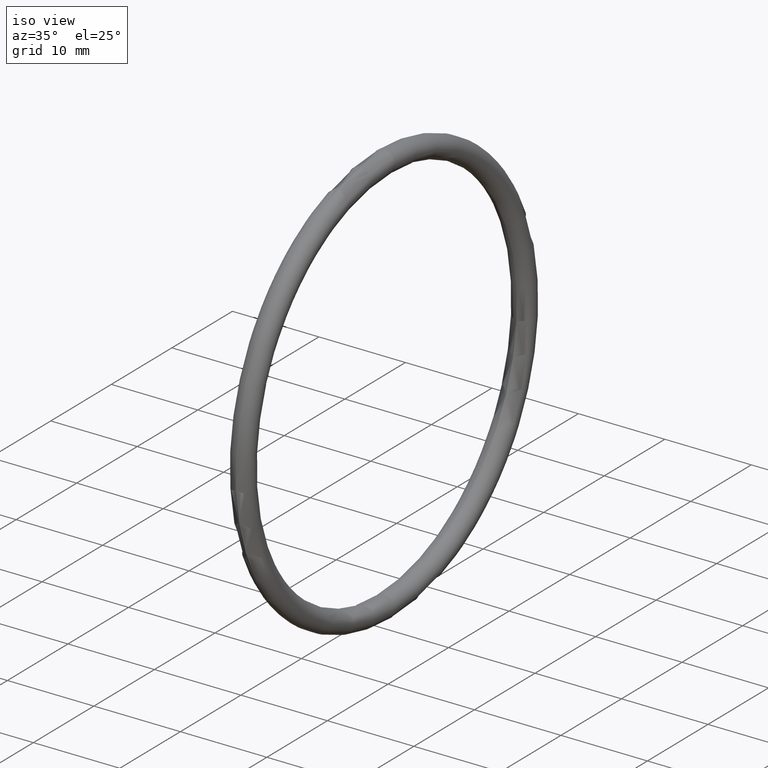
[diagram: clean part render]
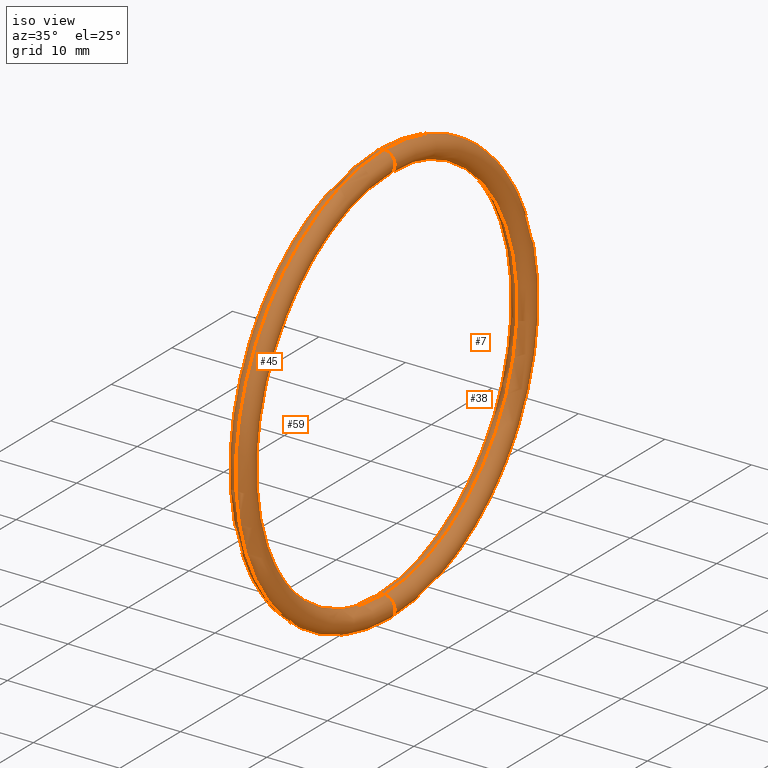
[diagram: same view with one multi-face feature highlighted, each face labeled with its STEP entity id]
A machine part, iso view. The highlighted faces form ONE feature: a constant-radius fillet chain: 4 tangent blend faces with common blend radius 1.27 mm. The faces share edges in the B-rep.
Their STEP definitions:
[1] entity #7 (Torus):
#7 = ADVANCED_FACE ( 'NONE', ( #15 ), #13, .T. ) ;
#8 = EDGE_CURVE ( 'NONE', #19, #50, #35, .T. ) ;
#10 = ORIENTED_EDGE ( 'NONE', *, *, #42, .F. ) ;
#11 = DIRECTION ( 'NONE',  ( -1.000000000000000000, 0.0000000000000000000, 0.0000000000000000000 ) ) ;
#12 = AXIS2_PLACEMENT_3D ( 'NONE', #14, #11, #37 ) ;
#13 = TOROIDAL_SURFACE ( 'NONE', #12, 0.9149999999999999200, 0.05000000000000000300 ) ;
#14 = CARTESIAN_POINT ( 'NONE',  ( 0.1000000000000001200, 0.0000000000000000000, 0.0000000000000000000 ) ) ;
#15 = FACE_OUTER_BOUND ( 'NONE', #56, .T. ) ;
#19 = VERTEX_POINT ( 'NONE', #152 ) ;
#31 = DIRECTION ( 'NONE',  ( 0.0000000000000000000, 0.0000000000000000000, 1.000000000000000000 ) ) ;
#32 = DIRECTION ( 'NONE',  ( -1.000000000000000000, 0.0000000000000000000, 0.0000000000000000000 ) ) ;
#33 = CARTESIAN_POINT ( 'NONE',  ( 0.1000000000000001200, 0.0000000000000000000, 0.0000000000000000000 ) ) ;
#34 = AXIS2_PLACEMENT_3D ( 'NONE', #33, #32, #31 ) ;
#35 = CIRCLE ( 'NONE', #34, 0.8649999999999998800 ) ;
#37 = DIRECTION ( 'NONE',  ( 0.0000000000000000000, 0.0000000000000000000, 1.000000000000000000 ) ) ;
#42 = EDGE_CURVE ( 'NONE', #52, #49, #66, .T. ) ;
#49 = VERTEX_POINT ( 'NONE', #89 ) ;
#50 = VERTEX_POINT ( 'NONE', #88 ) ;
#52 = VERTEX_POINT ( 'NONE', #87 ) ;
#53 = ORIENTED_EDGE ( 'NONE', *, *, #54, .F. ) ;
#54 = EDGE_CURVE ( 'NONE', #19, #52, #85, .T. ) ;
#55 = ORIENTED_EDGE ( 'NONE', *, *, #8, .T. ) ;
#56 = EDGE_LOOP ( 'NONE', ( #10, #53, #55, #57 ) ) ;
#57 = ORIENTED_EDGE ( 'NONE', *, *, #58, .T. ) ;
#58 = EDGE_CURVE ( 'NONE', #50, #49, #80, .T. ) ;
#65 = AXIS2_PLACEMENT_3D ( 'NONE', #103, #102, #101 ) ;
#66 = CIRCLE ( 'NONE', #65, 0.9649999999999999700 ) ;
#77 = DIRECTION ( 'NONE',  ( 0.0000000000000000000, -1.224646799147351700E-016, 1.000000000000000000 ) ) ;
#78 = DIRECTION ( 'NONE',  ( 0.0000000000000000000, 1.000000000000000000, 1.224646799147353200E-016 ) ) ;
#79 = AXIS2_PLACEMENT_3D ( 'NONE', #86, #78, #77 ) ;
#80 = CIRCLE ( 'NONE', #79, 0.05000000000000001000 ) ;
#81 = DIRECTION ( 'NONE',  ( 0.0000000000000000000, 0.0000000000000000000, -1.000000000000000000 ) ) ;
#82 = DIRECTION ( 'NONE',  ( 0.0000000000000000000, -1.000000000000000000, 0.0000000000000000000 ) ) ;
#83 = CARTESIAN_POINT ( 'NONE',  ( 0.1000000000000001200, 0.0000000000000000000, 0.9149999999999999200 ) ) ;
#84 = AXIS2_PLACEMENT_3D ( 'NONE', #83, #82, #81 ) ;
#85 = CIRCLE ( 'NONE', #84, 0.05000000000000001000 ) ;
#86 = CARTESIAN_POINT ( 'NONE',  ( 0.1000000000000001200, 1.120551821219828000E-016, -0.9149999999999999200 ) ) ;
#87 = CARTESIAN_POINT ( 'NONE',  ( 0.1000000000000001200, 0.0000000000000000000, 0.9649999999999999700 ) ) ;
#88 = CARTESIAN_POINT ( 'NONE',  ( 0.1000000000000001200, 1.059319481262460500E-016, -0.8649999999999998800 ) ) ;
#89 = CARTESIAN_POINT ( 'NONE',  ( 0.1000000000000001200, 1.181784161177195800E-016, -0.9649999999999999700 ) ) ;
#101 = DIRECTION ( 'NONE',  ( 0.0000000000000000000, 0.0000000000000000000, 1.000000000000000000 ) ) ;
#102 = DIRECTION ( 'NONE',  ( -1.000000000000000000, 0.0000000000000000000, 0.0000000000000000000 ) ) ;
#103 = CARTESIAN_POINT ( 'NONE',  ( 0.1000000000000001200, 0.0000000000000000000, 0.0000000000000000000 ) ) ;
#152 = CARTESIAN_POINT ( 'NONE',  ( 0.1000000000000001200, 0.0000000000000000000, 0.8649999999999998800 ) ) ;
[2] entity #59 (Torus):
#1 = EDGE_LOOP ( 'NONE', ( #2, #3, #4, #5 ) ) ;
#2 = ORIENTED_EDGE ( 'NONE', *, *, #16, .F. ) ;
#3 = ORIENTED_EDGE ( 'NONE', *, *, #58, .F. ) ;
#4 = ORIENTED_EDGE ( 'NONE', *, *, #21, .T. ) ;
#5 = ORIENTED_EDGE ( 'NONE', *, *, #54, .T. ) ;
#16 = EDGE_CURVE ( 'NONE', #49, #52, #29, .T. ) ;
#19 = VERTEX_POINT ( 'NONE', #152 ) ;
#21 = EDGE_CURVE ( 'NONE', #50, #19, #179, .T. ) ;
#26 = DIRECTION ( 'NONE',  ( 0.0000000000000000000, 0.0000000000000000000, 1.000000000000000000 ) ) ;
#27 = DIRECTION ( 'NONE',  ( -1.000000000000000000, 0.0000000000000000000, 0.0000000000000000000 ) ) ;
#28 = AXIS2_PLACEMENT_3D ( 'NONE', #36, #27, #26 ) ;
#29 = CIRCLE ( 'NONE', #28, 0.9649999999999999700 ) ;
#36 = CARTESIAN_POINT ( 'NONE',  ( 0.1000000000000001200, 0.0000000000000000000, 0.0000000000000000000 ) ) ;
#49 = VERTEX_POINT ( 'NONE', #89 ) ;
#50 = VERTEX_POINT ( 'NONE', #88 ) ;
#52 = VERTEX_POINT ( 'NONE', #87 ) ;
#54 = EDGE_CURVE ( 'NONE', #19, #52, #85, .T. ) ;
#58 = EDGE_CURVE ( 'NONE', #50, #49, #80, .T. ) ;
#59 = ADVANCED_FACE ( 'NONE', ( #76 ), #75, .T. ) ;
#71 = DIRECTION ( 'NONE',  ( 0.0000000000000000000, 0.0000000000000000000, 1.000000000000000000 ) ) ;
#72 = DIRECTION ( 'NONE',  ( -1.000000000000000000, 0.0000000000000000000, 0.0000000000000000000 ) ) ;
#73 = CARTESIAN_POINT ( 'NONE',  ( 0.1000000000000001200, 0.0000000000000000000, 0.0000000000000000000 ) ) ;
#74 = AXIS2_PLACEMENT_3D ( 'NONE', #73, #72, #71 ) ;
#75 = TOROIDAL_SURFACE ( 'NONE', #74, 0.9149999999999999200, 0.05000000000000000300 ) ;
#76 = FACE_OUTER_BOUND ( 'NONE', #1, .T. ) ;
#77 = DIRECTION ( 'NONE',  ( 0.0000000000000000000, -1.224646799147351700E-016, 1.000000000000000000 ) ) ;
#78 = DIRECTION ( 'NONE',  ( 0.0000000000000000000, 1.000000000000000000, 1.224646799147353200E-016 ) ) ;
#79 = AXIS2_PLACEMENT_3D ( 'NONE', #86, #78, #77 ) ;
#80 = CIRCLE ( 'NONE', #79, 0.05000000000000001000 ) ;
#81 = DIRECTION ( 'NONE',  ( 0.0000000000000000000, 0.0000000000000000000, -1.000000000000000000 ) ) ;
#82 = DIRECTION ( 'NONE',  ( 0.0000000000000000000, -1.000000000000000000, 0.0000000000000000000 ) ) ;
#83 = CARTESIAN_POINT ( 'NONE',  ( 0.1000000000000001200, 0.0000000000000000000, 0.9149999999999999200 ) ) ;
#84 = AXIS2_PLACEMENT_3D ( 'NONE', #83, #82, #81 ) ;
#85 = CIRCLE ( 'NONE', #84, 0.05000000000000001000 ) ;
#86 = CARTESIAN_POINT ( 'NONE',  ( 0.1000000000000001200, 1.120551821219828000E-016, -0.9149999999999999200 ) ) ;
#87 = CARTESIAN_POINT ( 'NONE',  ( 0.1000000000000001200, 0.0000000000000000000, 0.9649999999999999700 ) ) ;
#88 = CARTESIAN_POINT ( 'NONE',  ( 0.1000000000000001200, 1.059319481262460500E-016, -0.8649999999999998800 ) ) ;
#89 = CARTESIAN_POINT ( 'NONE',  ( 0.1000000000000001200, 1.181784161177195800E-016, -0.9649999999999999700 ) ) ;
#151 = DIRECTION ( 'NONE',  ( 0.0000000000000000000, 0.0000000000000000000, 1.000000000000000000 ) ) ;
#152 = CARTESIAN_POINT ( 'NONE',  ( 0.1000000000000001200, 0.0000000000000000000, 0.8649999999999998800 ) ) ;
#153 = CARTESIAN_POINT ( 'NONE',  ( 0.1000000000000001200, 0.0000000000000000000, 0.0000000000000000000 ) ) ;
#177 = DIRECTION ( 'NONE',  ( -1.000000000000000000, 0.0000000000000000000, 0.0000000000000000000 ) ) ;
#178 = AXIS2_PLACEMENT_3D ( 'NONE', #153, #177, #151 ) ;
#179 = CIRCLE ( 'NONE', #178, 0.8649999999999998800 ) ;
[3] entity #45 (Torus):
#16 = EDGE_CURVE ( 'NONE', #49, #52, #29, .T. ) ;
#17 = ORIENTED_EDGE ( 'NONE', *, *, #18, .T. ) ;
#18 = EDGE_CURVE ( 'NONE', #52, #19, #25, .T. ) ;
#19 = VERTEX_POINT ( 'NONE', #152 ) ;
#20 = ORIENTED_EDGE ( 'NONE', *, *, #21, .F. ) ;
#21 = EDGE_CURVE ( 'NONE', #50, #19, #179, .T. ) ;
#22 = DIRECTION ( 'NONE',  ( 0.0000000000000000000, 0.0000000000000000000, -1.000000000000000000 ) ) ;
#23 = DIRECTION ( 'NONE',  ( 0.0000000000000000000, -1.000000000000000000, 0.0000000000000000000 ) ) ;
#24 = AXIS2_PLACEMENT_3D ( 'NONE', #30, #23, #22 ) ;
#25 = CIRCLE ( 'NONE', #24, 0.05000000000000001000 ) ;
#26 = DIRECTION ( 'NONE',  ( 0.0000000000000000000, 0.0000000000000000000, 1.000000000000000000 ) ) ;
#27 = DIRECTION ( 'NONE',  ( -1.000000000000000000, 0.0000000000000000000, 0.0000000000000000000 ) ) ;
#28 = AXIS2_PLACEMENT_3D ( 'NONE', #36, #27, #26 ) ;
#29 = CIRCLE ( 'NONE', #28, 0.9649999999999999700 ) ;
#30 = CARTESIAN_POINT ( 'NONE',  ( 0.1000000000000001200, 0.0000000000000000000, 0.9149999999999999200 ) ) ;
#36 = CARTESIAN_POINT ( 'NONE',  ( 0.1000000000000001200, 0.0000000000000000000, 0.0000000000000000000 ) ) ;
#45 = ADVANCED_FACE ( 'NONE', ( #100 ), #99, .T. ) ;
#46 = EDGE_LOOP ( 'NONE', ( #47, #51, #17, #20 ) ) ;
#47 = ORIENTED_EDGE ( 'NONE', *, *, #48, .F. ) ;
#48 = EDGE_CURVE ( 'NONE', #49, #50, #94, .T. ) ;
#49 = VERTEX_POINT ( 'NONE', #89 ) ;
#50 = VERTEX_POINT ( 'NONE', #88 ) ;
#51 = ORIENTED_EDGE ( 'NONE', *, *, #16, .T. ) ;
#52 = VERTEX_POINT ( 'NONE', #87 ) ;
#87 = CARTESIAN_POINT ( 'NONE',  ( 0.1000000000000001200, 0.0000000000000000000, 0.9649999999999999700 ) ) ;
#88 = CARTESIAN_POINT ( 'NONE',  ( 0.1000000000000001200, 1.059319481262460500E-016, -0.8649999999999998800 ) ) ;
#89 = CARTESIAN_POINT ( 'NONE',  ( 0.1000000000000001200, 1.181784161177195800E-016, -0.9649999999999999700 ) ) ;
#90 = DIRECTION ( 'NONE',  ( 0.0000000000000000000, -1.224646799147351700E-016, 1.000000000000000000 ) ) ;
#91 = DIRECTION ( 'NONE',  ( 0.0000000000000000000, 1.000000000000000000, 1.224646799147353200E-016 ) ) ;
#92 = CARTESIAN_POINT ( 'NONE',  ( 0.1000000000000001200, 1.120551821219828000E-016, -0.9149999999999999200 ) ) ;
#93 = AXIS2_PLACEMENT_3D ( 'NONE', #92, #91, #90 ) ;
#94 = CIRCLE ( 'NONE', #93, 0.05000000000000001000 ) ;
#95 = DIRECTION ( 'NONE',  ( 0.0000000000000000000, 0.0000000000000000000, 1.000000000000000000 ) ) ;
#96 = DIRECTION ( 'NONE',  ( -1.000000000000000000, 0.0000000000000000000, 0.0000000000000000000 ) ) ;
#97 = CARTESIAN_POINT ( 'NONE',  ( 0.1000000000000001200, 0.0000000000000000000, 0.0000000000000000000 ) ) ;
#98 = AXIS2_PLACEMENT_3D ( 'NONE', #97, #96, #95 ) ;
#99 = TOROIDAL_SURFACE ( 'NONE', #98, 0.9149999999999999200, 0.05000000000000000300 ) ;
#100 = FACE_OUTER_BOUND ( 'NONE', #46, .T. ) ;
#151 = DIRECTION ( 'NONE',  ( 0.0000000000000000000, 0.0000000000000000000, 1.000000000000000000 ) ) ;
#152 = CARTESIAN_POINT ( 'NONE',  ( 0.1000000000000001200, 0.0000000000000000000, 0.8649999999999998800 ) ) ;
#153 = CARTESIAN_POINT ( 'NONE',  ( 0.1000000000000001200, 0.0000000000000000000, 0.0000000000000000000 ) ) ;
#177 = DIRECTION ( 'NONE',  ( -1.000000000000000000, 0.0000000000000000000, 0.0000000000000000000 ) ) ;
#178 = AXIS2_PLACEMENT_3D ( 'NONE', #153, #177, #151 ) ;
#179 = CIRCLE ( 'NONE', #178, 0.8649999999999998800 ) ;
[4] entity #38 (Torus):
#8 = EDGE_CURVE ( 'NONE', #19, #50, #35, .T. ) ;
#9 = ORIENTED_EDGE ( 'NONE', *, *, #8, .F. ) ;
#18 = EDGE_CURVE ( 'NONE', #52, #19, #25, .T. ) ;
#19 = VERTEX_POINT ( 'NONE', #152 ) ;
#22 = DIRECTION ( 'NONE',  ( 0.0000000000000000000, 0.0000000000000000000, -1.000000000000000000 ) ) ;
#23 = DIRECTION ( 'NONE',  ( 0.0000000000000000000, -1.000000000000000000, 0.0000000000000000000 ) ) ;
#24 = AXIS2_PLACEMENT_3D ( 'NONE', #30, #23, #22 ) ;
#25 = CIRCLE ( 'NONE', #24, 0.05000000000000001000 ) ;
#30 = CARTESIAN_POINT ( 'NONE',  ( 0.1000000000000001200, 0.0000000000000000000, 0.9149999999999999200 ) ) ;
#31 = DIRECTION ( 'NONE',  ( 0.0000000000000000000, 0.0000000000000000000, 1.000000000000000000 ) ) ;
#32 = DIRECTION ( 'NONE',  ( -1.000000000000000000, 0.0000000000000000000, 0.0000000000000000000 ) ) ;
#33 = CARTESIAN_POINT ( 'NONE',  ( 0.1000000000000001200, 0.0000000000000000000, 0.0000000000000000000 ) ) ;
#34 = AXIS2_PLACEMENT_3D ( 'NONE', #33, #32, #31 ) ;
#35 = CIRCLE ( 'NONE', #34, 0.8649999999999998800 ) ;
#38 = ADVANCED_FACE ( 'NONE', ( #150 ), #148, .T. ) ;
#39 = EDGE_LOOP ( 'NONE', ( #40, #41, #43, #9 ) ) ;
#40 = ORIENTED_EDGE ( 'NONE', *, *, #18, .F. ) ;
#41 = ORIENTED_EDGE ( 'NONE', *, *, #42, .T. ) ;
#42 = EDGE_CURVE ( 'NONE', #52, #49, #66, .T. ) ;
#43 = ORIENTED_EDGE ( 'NONE', *, *, #48, .T. ) ;
#48 = EDGE_CURVE ( 'NONE', #49, #50, #94, .T. ) ;
#49 = VERTEX_POINT ( 'NONE', #89 ) ;
#50 = VERTEX_POINT ( 'NONE', #88 ) ;
#52 = VERTEX_POINT ( 'NONE', #87 ) ;
#65 = AXIS2_PLACEMENT_3D ( 'NONE', #103, #102, #101 ) ;
#66 = CIRCLE ( 'NONE', #65, 0.9649999999999999700 ) ;
#67 = DIRECTION ( 'NONE',  ( 0.0000000000000000000, 0.0000000000000000000, 1.000000000000000000 ) ) ;
#68 = DIRECTION ( 'NONE',  ( -1.000000000000000000, 0.0000000000000000000, 0.0000000000000000000 ) ) ;
#69 = CARTESIAN_POINT ( 'NONE',  ( 0.1000000000000001200, 0.0000000000000000000, 0.0000000000000000000 ) ) ;
#87 = CARTESIAN_POINT ( 'NONE',  ( 0.1000000000000001200, 0.0000000000000000000, 0.9649999999999999700 ) ) ;
#88 = CARTESIAN_POINT ( 'NONE',  ( 0.1000000000000001200, 1.059319481262460500E-016, -0.8649999999999998800 ) ) ;
#89 = CARTESIAN_POINT ( 'NONE',  ( 0.1000000000000001200, 1.181784161177195800E-016, -0.9649999999999999700 ) ) ;
#90 = DIRECTION ( 'NONE',  ( 0.0000000000000000000, -1.224646799147351700E-016, 1.000000000000000000 ) ) ;
#91 = DIRECTION ( 'NONE',  ( 0.0000000000000000000, 1.000000000000000000, 1.224646799147353200E-016 ) ) ;
#92 = CARTESIAN_POINT ( 'NONE',  ( 0.1000000000000001200, 1.120551821219828000E-016, -0.9149999999999999200 ) ) ;
#93 = AXIS2_PLACEMENT_3D ( 'NONE', #92, #91, #90 ) ;
#94 = CIRCLE ( 'NONE', #93, 0.05000000000000001000 ) ;
#101 = DIRECTION ( 'NONE',  ( 0.0000000000000000000, 0.0000000000000000000, 1.000000000000000000 ) ) ;
#102 = DIRECTION ( 'NONE',  ( -1.000000000000000000, 0.0000000000000000000, 0.0000000000000000000 ) ) ;
#103 = CARTESIAN_POINT ( 'NONE',  ( 0.1000000000000001200, 0.0000000000000000000, 0.0000000000000000000 ) ) ;
#148 = TOROIDAL_SURFACE ( 'NONE', #149, 0.9149999999999999200, 0.05000000000000000300 ) ;
#149 = AXIS2_PLACEMENT_3D ( 'NONE', #69, #68, #67 ) ;
#150 = FACE_OUTER_BOUND ( 'NONE', #39, .T. ) ;
#152 = CARTESIAN_POINT ( 'NONE',  ( 0.1000000000000001200, 0.0000000000000000000, 0.8649999999999998800 ) ) ;